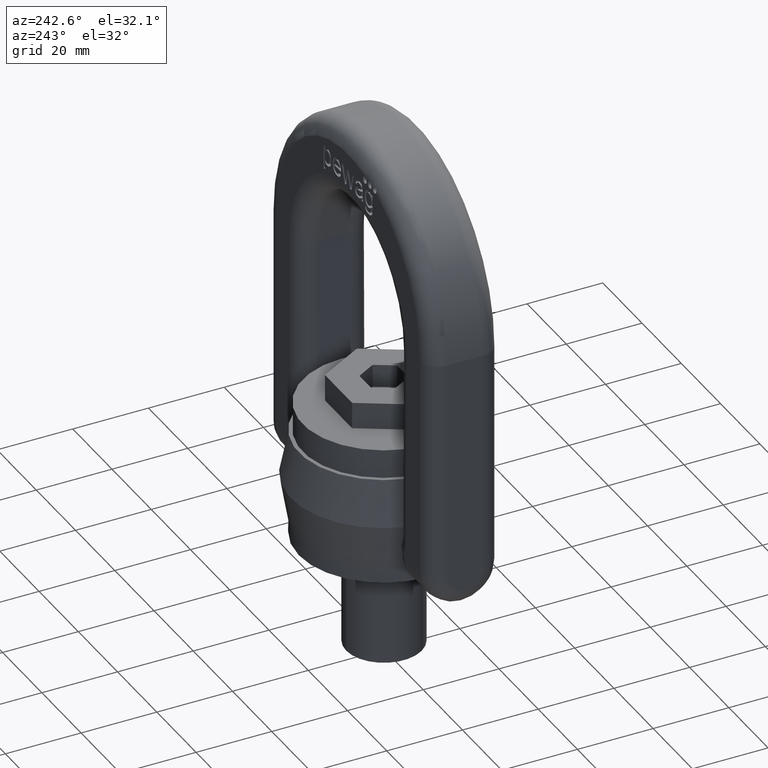
[diagram: clean part render]
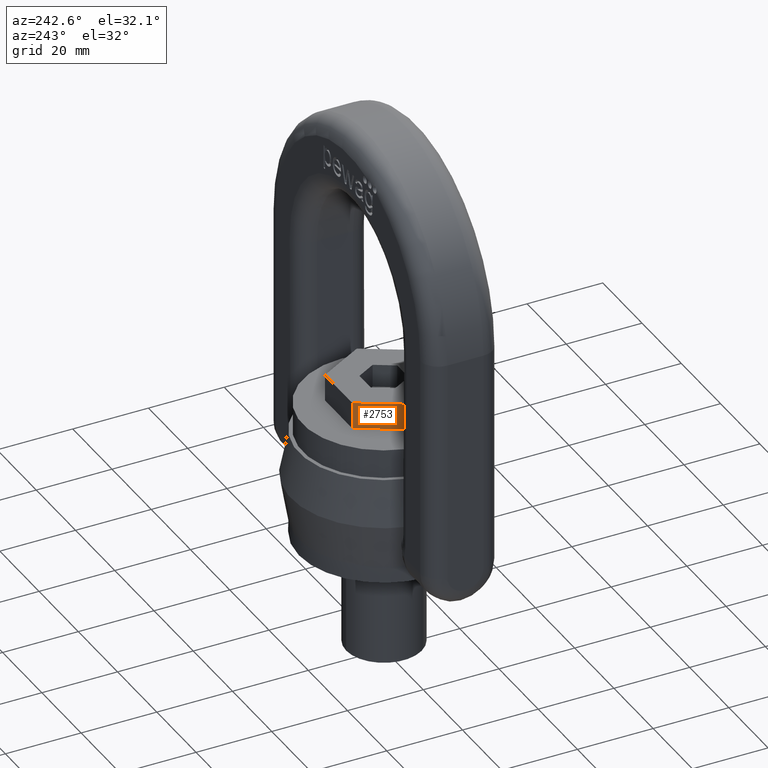
[diagram: same view with one face highlighted and labeled with its STEP entity id]
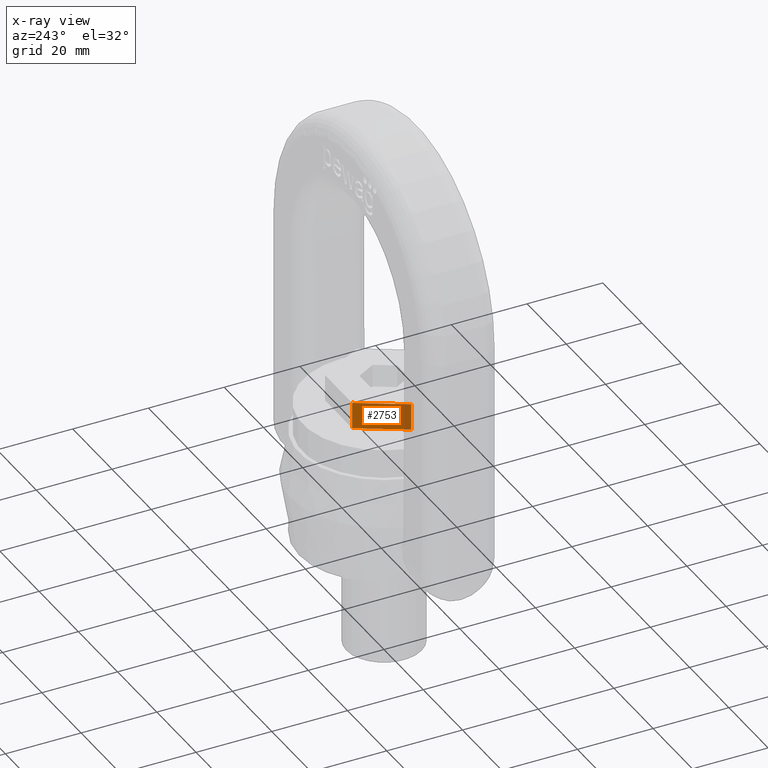
[diagram: x-ray of the same camera — body ghosted, the highlighted face saturated]
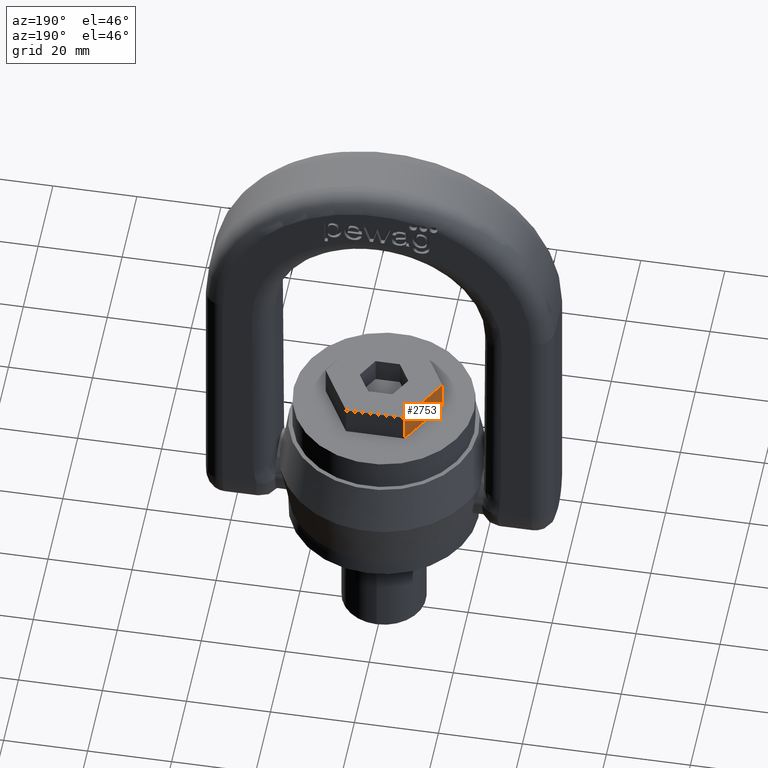
[diagram: same view with one face highlighted and labeled with its STEP entity id]
A machine part, auxiliary view. The second image highlights one B-rep face of the part: STEP entity #2753.
The next image is the same camera in x-ray: the body ghosted, the highlighted face saturated — about 13% of this face is hidden behind the body in this view.
A second angle (auxiliary view) of the same face is appended — the face is thin or edge-on in the first view.
In plain terms, the highlighted planar face has unit normal (0.866, -0.5, 0).
Its self-contained STEP definition (entity closure, byte-faithful):
#1756=LINE('',#6622,#2038);
#1763=LINE('',#6636,#2045);
#1770=LINE('',#6650,#2052);
#1772=LINE('',#6654,#2054);
#2038=VECTOR('',#5843,1.);
#2045=VECTOR('',#5852,1.);
#2052=VECTOR('',#5867,1.);
#2054=VECTOR('',#5871,1.);
#2417=FACE_OUTER_BOUND('',#3085,.T.);
#2634=PLANE('',#5624);
#2753=ADVANCED_FACE('',(#2417),#2634,.F.);
#3085=EDGE_LOOP('',(#3381,#3382,#3383,#3384));
#3381=ORIENTED_EDGE('',*,*,#4952,.T.);
#3382=ORIENTED_EDGE('',*,*,#4959,.F.);
#3383=ORIENTED_EDGE('',*,*,#4968,.F.);
#3384=ORIENTED_EDGE('',*,*,#4966,.T.);
#4551=VERTEX_POINT('',#6620);
#4553=VERTEX_POINT('',#6623);
#4558=VERTEX_POINT('',#6635);
#4562=VERTEX_POINT('',#6651);
#4952=EDGE_CURVE('',#4553,#4551,#1756,.T.);
#4959=EDGE_CURVE('',#4558,#4551,#1763,.T.);
#4966=EDGE_CURVE('',#4562,#4553,#1770,.T.);
#4968=EDGE_CURVE('',#4562,#4558,#1772,.T.);
#5624=AXIS2_PLACEMENT_3D('',#6655,#5872,#5873);
#5843=DIRECTION('',(-0.5,-0.866025403784439,0.));
#5852=DIRECTION('',(0.,0.,-1.));
#5867=DIRECTION('',(0.,0.,-1.));
#5871=DIRECTION('',(-0.5,-0.866025403784439,0.));
#5872=DIRECTION('',(0.866025403784439,-0.5,0.));
#5873=DIRECTION('',(0.5,0.866025403784439,0.));
#6620=CARTESIAN_POINT('',(-13.856406460551,0.,36.));
#6622=CARTESIAN_POINT('',(-6.92820323027551,12.,36.));
#6623=CARTESIAN_POINT('',(-6.92820323027551,12.,36.));
#6635=CARTESIAN_POINT('',(-13.856406460551,0.,43.));
#6636=CARTESIAN_POINT('',(-13.856406460551,0.,43.));
#6650=CARTESIAN_POINT('',(-6.92820323027551,12.,43.));
#6651=CARTESIAN_POINT('',(-6.92820323027551,12.,43.));
#6654=CARTESIAN_POINT('',(-6.92820323027551,12.,43.));
#6655=CARTESIAN_POINT('',(-6.92820323027551,12.,43.));